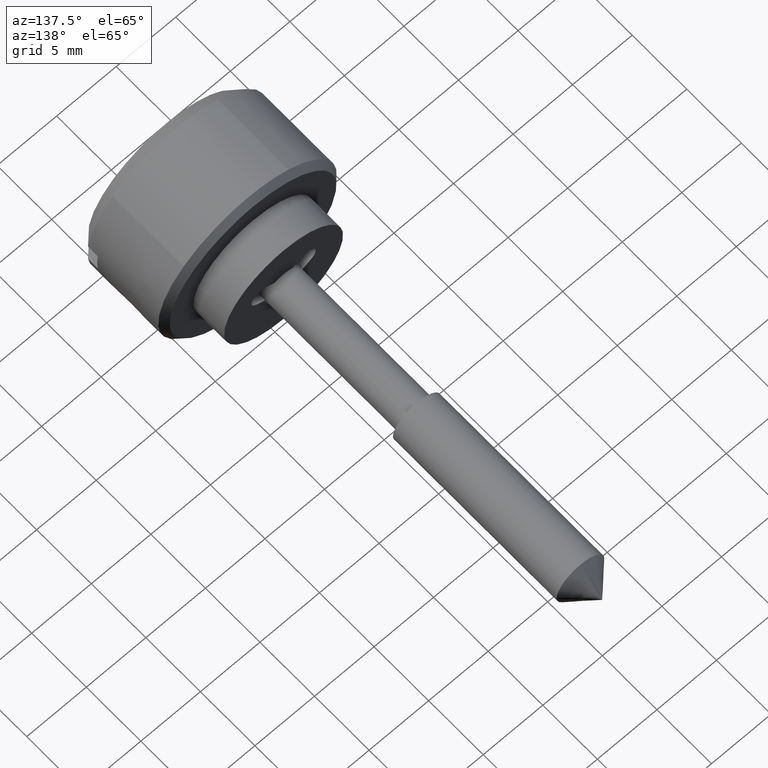
[diagram: clean part render]
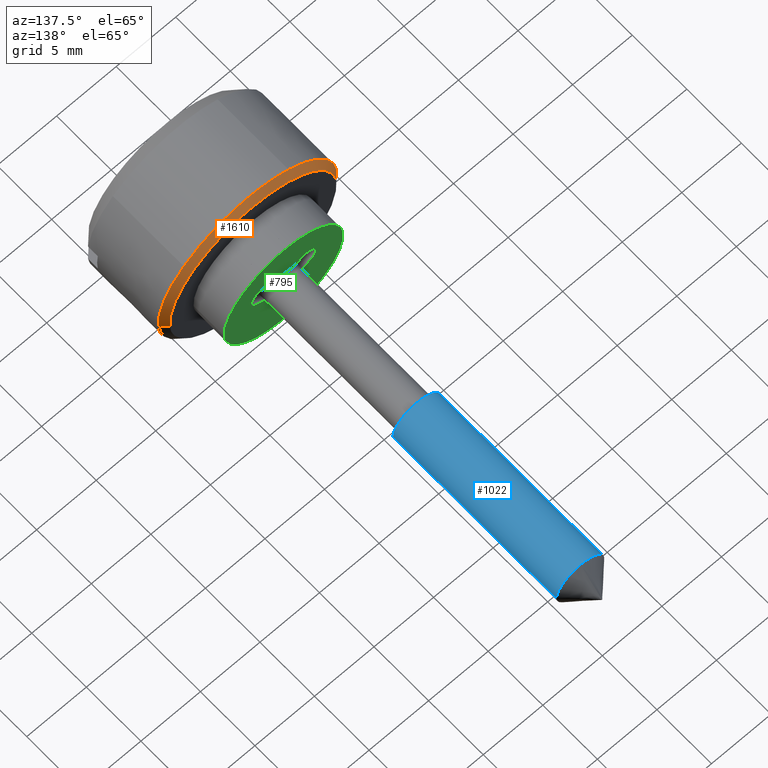
[diagram: same view with three faces highlighted in distinct colors, each labeled with its STEP entity id]
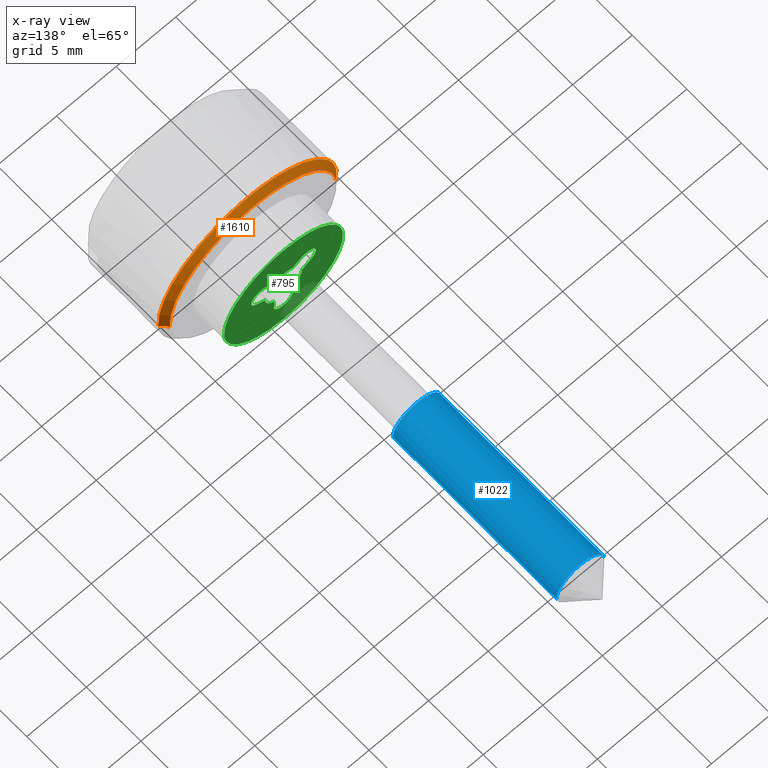
[diagram: x-ray of the same camera — body ghosted, the three highlighted faces saturated]
A machine part, auxiliary view with three faces highlighted in distinct colors.
The next image is the same camera in x-ray (body ghosted, the three faces saturated) — at least one of them is partly hidden behind the body in this view.
Their STEP definitions:

[orange] entity #1610 — the highlighted face is a freeform B-spline surface patch.
#1417=CARTESIAN_POINT('',(7.499899999988652,7.447571447728249,0.885256760015521));
#1418=VERTEX_POINT('',#1417);
#1436=CARTESIAN_POINT('',(7.999899999998985,6.951066684545736,0.826239642605311));
#1437=VERTEX_POINT('',#1436);
#1438=CARTESIAN_POINT('',(7.999899999998985,6.951066684545736,0.826239642605311));
#1439=CARTESIAN_POINT('',(7.499899999988652,7.447571447728249,0.885256760015521));
#1440=QUASI_UNIFORM_CURVE('',1,(#1438,#1439),.UNSPECIFIED.,.F.,.U.);
#1441=EDGE_CURVE('',#1437,#1418,#1440,.T.);
#1460=CARTESIAN_POINT('',(7.999899999991966,-6.986943588957392,-0.427339776804892));
#1461=VERTEX_POINT('',#1460);
#1475=CARTESIAN_POINT('',(7.499899999999781,-7.486010988164120,-0.457864046513102));
#1476=VERTEX_POINT('',#1475);
#1477=CARTESIAN_POINT('',(7.999899999991966,-6.986943588957392,-0.427339776804892));
#1478=CARTESIAN_POINT('',(7.499899999999781,-7.486010988164120,-0.457864046513102));
#1479=QUASI_UNIFORM_CURVE('',1,(#1477,#1478),.UNSPECIFIED.,.F.,.U.);
#1480=EDGE_CURVE('',#1461,#1476,#1479,.T.);
#1498=CARTESIAN_POINT('',(8.012400000000001,-6.974466903972791,-0.426576669999813));
#1499=CARTESIAN_POINT('',(8.012400000000001,-7.401043573972603,6.547890233972979));
#1500=CARTESIAN_POINT('',(8.012400000000001,-0.426576669999813,6.974466903972791));
#1501=CARTESIAN_POINT('',(8.012400000000001,6.159785142241011,7.377306049668533));
#1502=CARTESIAN_POINT('',(8.012400000000001,6.938654065466117,0.824764214664099));
#1503=CARTESIAN_POINT('',(7.487087500000000,-7.498799590268781,-0.458646230924218));
#1504=CARTESIAN_POINT('',(7.487087499999999,-7.957445821193000,7.040153359344564));
#1505=CARTESIAN_POINT('',(7.487087500000000,-0.458646230924218,7.498799590268781));
#1506=CARTESIAN_POINT('',(7.487087500000000,6.622870957272640,7.931923736139591));
#1507=CARTESIAN_POINT('',(7.487087500000000,7.460294382284035,0.886769073557228));
#1515=(BOUNDED_SURFACE()B_SPLINE_SURFACE(2,1,((#1498,#1503),(#1499,#1504),(#1500,#1505),(#1501,#1506),(#1502,#1507)),.UNSPECIFIED.,.F.,.F.,.U.)B_SPLINE_SURFACE_WITH_KNOTS((3,2,3),(2,2),(0.0,12.447635316264471,24.397365219878360),(0.0,1.0),.UNSPECIFIED.)GEOMETRIC_REPRESENTATION_ITEM()RATIONAL_B_SPLINE_SURFACE(((1.0,1.0),(0.707106781186548,0.707106781186548),(1.0,1.0),(0.718822509939086,0.718822509939086),(0.977505800795127,0.977505800795127)))REPRESENTATION_ITEM('')SURFACE());
#1516=CARTESIAN_POINT('',(7.499900000000000,3.440545476961388,6.664281418199603));
#1517=VERTEX_POINT('',#1516);
#1518=CARTESIAN_POINT('',(7.499900000000000,3.440545476961388,6.664281418199604));
#1519=CARTESIAN_POINT('',(7.499900000000002,6.977708690052852,4.838162420869137));
#1520=CARTESIAN_POINT('',(7.499899999988652,7.447571447728250,0.885256760015521));
#1528=(BOUNDED_CURVE()B_SPLINE_CURVE(2,(#1518,#1519,#1520),.UNSPECIFIED.,.F.,.U.)B_SPLINE_CURVE_WITH_KNOTS((3,3),(0.078028427142425,0.229562473511628),.UNSPECIFIED.)CURVE()GEOMETRIC_REPRESENTATION_ITEM()RATIONAL_B_SPLINE_CURVE((0.874232389058089,0.807520288065911,0.956026754180014))REPRESENTATION_ITEM(''));
#1529=EDGE_CURVE('',#1517,#1418,#1528,.T.);
#1530=ORIENTED_EDGE('',*,*,#1529,.F.);
#1531=CARTESIAN_POINT('',(7.499900000000000,0.0,7.500000000000000));
#1532=VERTEX_POINT('',#1531);
#1533=CARTESIAN_POINT('',(7.499900000000000,0.0,7.500000000000000));
#1534=CARTESIAN_POINT('',(7.499900000000001,1.821771986097596,7.500000000000001));
#1535=CARTESIAN_POINT('',(7.499900000000000,3.440545476961389,6.664281418199603));
#1543=(BOUNDED_CURVE()B_SPLINE_CURVE(2,(#1533,#1534,#1535),.UNSPECIFIED.,.F.,.U.)B_SPLINE_CURVE_WITH_KNOTS((3,3),(0.0,0.078028427142425),.UNSPECIFIED.)CURVE()GEOMETRIC_REPRESENTATION_ITEM()RATIONAL_B_SPLINE_CURVE((1.0,0.908584011261217,0.874232389058089))REPRESENTATION_ITEM(''));
#1544=EDGE_CURVE('',#1532,#1517,#1543,.T.);
#1545=ORIENTED_EDGE('',*,*,#1544,.F.);
#1546=CARTESIAN_POINT('',(7.499900000000023,-5.359268461754884,5.246736276471250));
#1547=VERTEX_POINT('',#1546);
#1548=CARTESIAN_POINT('',(7.499900000000023,-5.359268461754884,5.246736276471249));
#1549=CARTESIAN_POINT('',(7.499900000000000,-3.153318145594727,7.500000000000000));
#1550=CARTESIAN_POINT('',(7.499900000000000,0.0,7.500000000000000));
#1558=(BOUNDED_CURVE()B_SPLINE_CURVE(2,(#1548,#1549,#1550),.UNSPECIFIED.,.F.,.U.)B_SPLINE_CURVE_WITH_KNOTS((3,3),(0.873399080895589,1.0),.UNSPECIFIED.)CURVE()GEOMETRIC_REPRESENTATION_ITEM()RATIONAL_B_SPLINE_CURVE((0.853577411979700,0.851677797195070,1.0))REPRESENTATION_ITEM(''));
#1559=EDGE_CURVE('',#1547,#1532,#1558,.T.);
#1560=ORIENTED_EDGE('',*,*,#1559,.F.);
#1561=CARTESIAN_POINT('',(7.499899999999781,-7.486010988164120,-0.457864046513102));
#1562=CARTESIAN_POINT('',(7.499900000000000,-7.500000000000000,-0.229145724741083));
#1563=CARTESIAN_POINT('',(7.499900000000000,-7.500000000000000,0.0));
#1564=CARTESIAN_POINT('',(7.499900000000000,-7.499999999999999,3.060090148675428));
#1565=CARTESIAN_POINT('',(7.499900000000023,-5.359268461754884,5.246736276471249));
#1573=(BOUNDED_CURVE()B_SPLINE_CURVE(2,(#1561,#1562,#1563,#1564,#1565),.UNSPECIFIED.,.F.,.U.)B_SPLINE_CURVE_WITH_KNOTS((3,2,3),(0.739332962241892,0.750000000000000,0.873399080895589),.UNSPECIFIED.)CURVE()GEOMETRIC_REPRESENTATION_ITEM()RATIONAL_B_SPLINE_CURVE((0.976072041673038,0.987502787903292,1.0,0.855428983991477,0.853577411979700))REPRESENTATION_ITEM(''));
#1574=EDGE_CURVE('',#1476,#1547,#1573,.T.);
#1575=ORIENTED_EDGE('',*,*,#1574,.F.);
#1576=ORIENTED_EDGE('',*,*,#1480,.F.);
#1577=CARTESIAN_POINT('',(7.999900000000001,0.0,7.0));
#1578=VERTEX_POINT('',#1577);
#1579=CARTESIAN_POINT('',(7.999899999991966,-6.986943588957392,-0.427339776804892));
#1580=CARTESIAN_POINT('',(7.999900000000003,-7.0,-0.213869343150694));
#1581=CARTESIAN_POINT('',(7.999900000000001,-7.0,0.0));
#1582=CARTESIAN_POINT('',(7.999900000000002,-6.999999999999999,6.999999999999999));
#1583=CARTESIAN_POINT('',(7.999900000000001,0.0,7.0));
#1591=(BOUNDED_CURVE()B_SPLINE_CURVE(2,(#1579,#1580,#1581,#1582,#1583),.UNSPECIFIED.,.F.,.U.)B_SPLINE_CURVE_WITH_KNOTS((3,2,3),(0.739332962238985,0.750000000000000,1.0),.UNSPECIFIED.)CURVE()GEOMETRIC_REPRESENTATION_ITEM()RATIONAL_B_SPLINE_CURVE((0.976072041666808,0.987502787899887,1.0,0.707106781186547,1.0))REPRESENTATION_ITEM(''));
#1592=EDGE_CURVE('',#1461,#1578,#1591,.T.);
#1593=ORIENTED_EDGE('',*,*,#1592,.T.);
#1594=CARTESIAN_POINT('',(7.999900000000001,0.0,7.0));
#1595=CARTESIAN_POINT('',(7.999900000000001,6.217221681645379,6.999999999999999));
#1596=CARTESIAN_POINT('',(7.999899999998986,6.951066684545736,0.826239642605311));
#1604=(BOUNDED_CURVE()B_SPLINE_CURVE(2,(#1594,#1595,#1596),.UNSPECIFIED.,.F.,.U.)B_SPLINE_CURVE_WITH_KNOTS((3,3),(0.0,0.229562473515261),.UNSPECIFIED.)CURVE()GEOMETRIC_REPRESENTATION_ITEM()RATIONAL_B_SPLINE_CURVE((1.0,0.731050832853349,0.956026754187135))REPRESENTATION_ITEM(''));
#1605=EDGE_CURVE('',#1578,#1437,#1604,.T.);
#1606=ORIENTED_EDGE('',*,*,#1605,.T.);
#1607=ORIENTED_EDGE('',*,*,#1441,.T.);
#1608=EDGE_LOOP('',(#1530,#1545,#1560,#1575,#1576,#1593,#1606,#1607));
#1609=FACE_OUTER_BOUND('',#1608,.T.);
#1610=ADVANCED_FACE('',(#1609),#1515,.T.);

[blue] entity #1022 — the highlighted face is a freeform B-spline surface patch.
#859=CARTESIAN_POINT('',(37.999899999999997,1.986019052726245,0.236068469322671));
#860=VERTEX_POINT('',#859);
#878=CARTESIAN_POINT('',(37.999899999999997,-1.996269596837640,-0.122097079169345));
#879=VERTEX_POINT('',#878);
#893=CARTESIAN_POINT('',(22.999900000000000,-1.996269596837640,-0.122097079169345));
#894=VERTEX_POINT('',#893);
#895=CARTESIAN_POINT('',(37.999899999999997,-1.996269596837640,-0.122097079169345));
#896=CARTESIAN_POINT('',(22.999900000000000,-1.996269596837640,-0.122097079169345));
#897=QUASI_UNIFORM_CURVE('',1,(#895,#896),.UNSPECIFIED.,.F.,.U.);
#898=EDGE_CURVE('',#879,#894,#897,.T.);
#915=CARTESIAN_POINT('',(22.999900000000000,1.986019052726245,0.236068469322671));
#916=VERTEX_POINT('',#915);
#932=CARTESIAN_POINT('',(37.999899999999997,1.986019052726245,0.236068469322671));
#933=CARTESIAN_POINT('',(22.999900000000000,1.986019052726245,0.236068469322671));
#934=QUASI_UNIFORM_CURVE('',1,(#932,#933),.UNSPECIFIED.,.F.,.U.);
#935=EDGE_CURVE('',#860,#916,#934,.T.);
#940=CARTESIAN_POINT('',(38.374900000000011,-1.996269596843733,-0.122097079069714));
#941=CARTESIAN_POINT('',(38.374900000000011,-2.118366675913447,1.874172517774020));
#942=CARTESIAN_POINT('',(38.374900000000011,-0.122097079069714,1.996269596843733));
#943=CARTESIAN_POINT('',(38.374900000000018,1.763086981679002,2.111572393465055));
#944=CARTESIAN_POINT('',(38.374900000000011,1.986019052727332,0.236068469313517));
#945=CARTESIAN_POINT('',(22.615525000000002,-1.996269596843733,-0.122097079069714));
#946=CARTESIAN_POINT('',(22.615524999999991,-2.118366675913447,1.874172517774020));
#947=CARTESIAN_POINT('',(22.615525000000002,-0.122097079069714,1.996269596843733));
#948=CARTESIAN_POINT('',(22.615524999999998,1.763086981679002,2.111572393465055));
#949=CARTESIAN_POINT('',(22.615524999999995,1.986019052727332,0.236068469313517));
#957=(BOUNDED_SURFACE()B_SPLINE_SURFACE(2,1,((#940,#945),(#941,#946),(#942,#947),(#943,#948),(#944,#949)),.UNSPECIFIED.,.F.,.F.,.U.)B_SPLINE_SURFACE_WITH_KNOTS((3,2,3),(2,2),(0.0,3.313708498984759,6.494868658010128),(0.0,15.759375000000020),.UNSPECIFIED.)GEOMETRIC_REPRESENTATION_ITEM()RATIONAL_B_SPLINE_SURFACE(((1.0,1.0),(0.707106781186548,0.707106781186548),(1.0,1.0),(0.718822509939086,0.718822509939086),(0.977505800795127,0.977505800795127)))REPRESENTATION_ITEM('')SURFACE());
#958=CARTESIAN_POINT('',(37.999899999999997,0.0,2.0));
#959=VERTEX_POINT('',#958);
#960=CARTESIAN_POINT('',(37.999899999999997,0.0,2.0));
#961=CARTESIAN_POINT('',(37.999900000000011,1.776349051886243,2.0));
#962=CARTESIAN_POINT('',(37.999900000000004,1.986019052726245,0.236068469322671));
#970=(BOUNDED_CURVE()B_SPLINE_CURVE(2,(#960,#961,#962),.UNSPECIFIED.,.F.,.U.)B_SPLINE_CURVE_WITH_KNOTS((3,3),(0.0,0.459124947028172),.UNSPECIFIED.)CURVE()GEOMETRIC_REPRESENTATION_ITEM()RATIONAL_B_SPLINE_CURVE((1.0,0.731050832854726,0.956026754184832))REPRESENTATION_ITEM(''));
#971=EDGE_CURVE('',#959,#860,#970,.T.);
#972=ORIENTED_EDGE('',*,*,#971,.T.);
#973=ORIENTED_EDGE('',*,*,#935,.T.);
#974=CARTESIAN_POINT('',(22.999900000000000,0.0,2.0));
#975=VERTEX_POINT('',#974);
#976=CARTESIAN_POINT('',(22.999900000000000,0.0,2.0));
#977=CARTESIAN_POINT('',(22.999900000000000,1.776349051886243,2.0));
#978=CARTESIAN_POINT('',(22.999900000000000,1.986019052726245,0.236068469322671));
#986=(BOUNDED_CURVE()B_SPLINE_CURVE(2,(#976,#977,#978),.UNSPECIFIED.,.F.,.U.)B_SPLINE_CURVE_WITH_KNOTS((3,3),(0.0,0.229562473514086),.UNSPECIFIED.)CURVE()GEOMETRIC_REPRESENTATION_ITEM()RATIONAL_B_SPLINE_CURVE((1.0,0.731050832854726,0.956026754184832))REPRESENTATION_ITEM(''));
#987=EDGE_CURVE('',#975,#916,#986,.T.);
#988=ORIENTED_EDGE('',*,*,#987,.F.);
#989=CARTESIAN_POINT('',(22.999900000000004,-1.996269596837640,-0.122097079169345));
#990=CARTESIAN_POINT('',(22.999900000000004,-2.000000000000000,-0.061105526697089));
#991=CARTESIAN_POINT('',(22.999900000000000,-2.0,0.0));
#992=CARTESIAN_POINT('',(22.999900000000007,-2.000000000000000,2.000000000000000));
#993=CARTESIAN_POINT('',(22.999900000000000,0.0,2.0));
#1001=(BOUNDED_CURVE()B_SPLINE_CURVE(2,(#989,#990,#991,#992,#993),.UNSPECIFIED.,.F.,.U.)B_SPLINE_CURVE_WITH_KNOTS((3,2,3),(0.739332962224745,0.750000000000000,1.0),.UNSPECIFIED.)CURVE()GEOMETRIC_REPRESENTATION_ITEM()RATIONAL_B_SPLINE_CURVE((0.976072041636289,0.987502787883204,1.0,0.707106781186548,1.0))REPRESENTATION_ITEM(''));
#1002=EDGE_CURVE('',#894,#975,#1001,.T.);
#1003=ORIENTED_EDGE('',*,*,#1002,.F.);
#1004=ORIENTED_EDGE('',*,*,#898,.F.);
#1005=CARTESIAN_POINT('',(37.999900000000004,-1.996269596837640,-0.122097079169345));
#1006=CARTESIAN_POINT('',(37.999900000000004,-2.000000000000000,-0.061105526697089));
#1007=CARTESIAN_POINT('',(37.999899999999997,-2.0,0.0));
#1008=CARTESIAN_POINT('',(37.999900000000004,-2.000000000000000,2.000000000000000));
#1009=CARTESIAN_POINT('',(37.999899999999997,0.0,2.0));
#1017=(BOUNDED_CURVE()B_SPLINE_CURVE(2,(#1005,#1006,#1007,#1008,#1009),.UNSPECIFIED.,.F.,.U.)B_SPLINE_CURVE_WITH_KNOTS((3,2,3),(0.478665924449490,0.500000000000000,1.0),.UNSPECIFIED.)CURVE()GEOMETRIC_REPRESENTATION_ITEM()RATIONAL_B_SPLINE_CURVE((0.976072041636289,0.987502787883204,1.0,0.707106781186548,1.0))REPRESENTATION_ITEM(''));
#1018=EDGE_CURVE('',#879,#959,#1017,.T.);
#1019=ORIENTED_EDGE('',*,*,#1018,.T.);
#1020=EDGE_LOOP('',(#972,#973,#988,#1003,#1004,#1019));
#1021=FACE_OUTER_BOUND('',#1020,.T.);
#1022=ADVANCED_FACE('',(#1021),#957,.T.);

[green] entity #795 — the highlighted face is a freeform B-spline surface patch.
#85=CARTESIAN_POINT('',(-4.965048111126531,0.800000000000023,0.590167140886682));
#86=VERTEX_POINT('',#85);
#92=CARTESIAN_POINT('',(0.0,0.800000000000023,-5.0));
#93=VERTEX_POINT('',#92);
#94=CARTESIAN_POINT('',(-4.965048111126531,0.800000000000023,0.590167140886682));
#95=CARTESIAN_POINT('',(-5.0,0.800000000000023,0.296118560746247));
#96=CARTESIAN_POINT('',(-5.0,0.800000000000023,0.0));
#97=CARTESIAN_POINT('',(-5.000000000000001,0.800000000000023,-5.000000000000001));
#98=CARTESIAN_POINT('',(0.0,0.800000000000023,-5.0));
#106=(BOUNDED_CURVE()B_SPLINE_CURVE(2,(#94,#95,#96,#97,#98),.UNSPECIFIED.,.F.,.U.)B_SPLINE_CURVE_WITH_KNOTS((3,2,3),(0.229562610772786,0.250000000000000,0.500000000000000),.UNSPECIFIED.)CURVE()GEOMETRIC_REPRESENTATION_ITEM()RATIONAL_B_SPLINE_CURVE((0.956027023217678,0.976056109140392,1.0,0.707106781186548,1.0))REPRESENTATION_ITEM(''));
#107=EDGE_CURVE('',#86,#93,#106,.T.);
#109=CARTESIAN_POINT('',(4.990673992107416,0.800000000000023,-0.305242697705651));
#110=VERTEX_POINT('',#109);
#111=CARTESIAN_POINT('',(0.0,0.800000000000023,-5.0));
#112=CARTESIAN_POINT('',(4.703530334469256,0.800000000000023,-5.0));
#113=CARTESIAN_POINT('',(4.990673992107416,0.800000000000023,-0.305242697705651));
#121=(BOUNDED_CURVE()B_SPLINE_CURVE(2,(#111,#112,#113),.UNSPECIFIED.,.F.,.U.)B_SPLINE_CURVE_WITH_KNOTS((3,3),(0.500000000000000,0.739332962239800),.UNSPECIFIED.)CURVE()GEOMETRIC_REPRESENTATION_ITEM()RATIONAL_B_SPLINE_CURVE((1.0,0.719603993285706,0.976072041668554))REPRESENTATION_ITEM(''));
#122=EDGE_CURVE('',#93,#110,#121,.T.);
#196=CARTESIAN_POINT('',(0.0,0.800000000000023,5.0));
#197=VERTEX_POINT('',#196);
#198=CARTESIAN_POINT('',(4.990673992107416,0.800000000000023,-0.305242697705651));
#199=CARTESIAN_POINT('',(5.0,0.800000000000023,-0.152763816524399));
#200=CARTESIAN_POINT('',(5.0,0.800000000000023,0.0));
#201=CARTESIAN_POINT('',(5.000000000000001,0.800000000000023,5.000000000000001));
#202=CARTESIAN_POINT('',(0.0,0.800000000000023,5.0));
#210=(BOUNDED_CURVE()B_SPLINE_CURVE(2,(#198,#199,#200,#201,#202),.UNSPECIFIED.,.F.,.U.)B_SPLINE_CURVE_WITH_KNOTS((3,2,3),(0.739332962239799,0.750000000000000,1.0),.UNSPECIFIED.)CURVE()GEOMETRIC_REPRESENTATION_ITEM()RATIONAL_B_SPLINE_CURVE((0.976072041668553,0.987502787900841,1.0,0.707106781186548,1.0))REPRESENTATION_ITEM(''));
#211=EDGE_CURVE('',#110,#197,#210,.T.);
#213=CARTESIAN_POINT('',(0.0,0.800000000000023,5.0));
#214=CARTESIAN_POINT('',(-4.440876261832547,0.800000000000023,5.0));
#215=CARTESIAN_POINT('',(-4.965048111126531,0.800000000000023,0.590167140886682));
#223=(BOUNDED_CURVE()B_SPLINE_CURVE(2,(#213,#214,#215),.UNSPECIFIED.,.F.,.U.)B_SPLINE_CURVE_WITH_KNOTS((3,3),(0.0,0.229562610772786),.UNSPECIFIED.)CURVE()GEOMETRIC_REPRESENTATION_ITEM()RATIONAL_B_SPLINE_CURVE((1.0,0.731050672046156,0.956027023217678))REPRESENTATION_ITEM(''));
#224=EDGE_CURVE('',#197,#86,#223,.T.);
#267=CARTESIAN_POINT('',(1.505200000000000,0.800000000000023,1.792900000000000));
#268=VERTEX_POINT('',#267);
#274=CARTESIAN_POINT('',(2.309794983558780,0.800000000000023,0.409852987198331));
#275=VERTEX_POINT('',#274);
#276=CARTESIAN_POINT('',(2.309794983558779,0.800000000000023,0.409852987198332));
#277=CARTESIAN_POINT('',(2.997732561522572,0.800000000000023,0.813095514915834));
#278=CARTESIAN_POINT('',(2.596752573461200,0.800000000000023,1.502354317187515));
#279=CARTESIAN_POINT('',(2.195772585399829,0.800000000000023,2.191613119459197));
#280=CARTESIAN_POINT('',(1.505200000000001,0.800000000000023,1.792899999999999));
#288=(BOUNDED_CURVE()B_SPLINE_CURVE(2,(#276,#277,#278,#279,#280),.UNSPECIFIED.,.F.,.U.)B_SPLINE_CURVE_WITH_KNOTS((3,2,3),(0.0,0.500000000000000,1.0),.UNSPECIFIED.)CURVE()GEOMETRIC_REPRESENTATION_ITEM()RATIONAL_B_SPLINE_CURVE((1.0,0.708267502221114,1.0,0.708267502221114,1.0))REPRESENTATION_ITEM(''));
#289=EDGE_CURVE('',#275,#268,#288,.T.);
#311=CARTESIAN_POINT('',(0.749639666225095,0.800000000000023,1.356665165330756));
#312=VERTEX_POINT('',#311);
#318=CARTESIAN_POINT('',(0.749639666225095,0.800000000000023,1.356665165330756));
#319=CARTESIAN_POINT('',(1.505200000000000,0.800000000000023,1.792900000000000));
#320=QUASI_UNIFORM_CURVE('',1,(#318,#319),.UNSPECIFIED.,.F.,.U.);
#321=EDGE_CURVE('',#312,#268,#320,.T.);
#356=CARTESIAN_POINT('',(-0.749690762769801,0.800000000000023,1.356636930139244));
#357=VERTEX_POINT('',#356);
#363=CARTESIAN_POINT('',(0.749639666225096,0.800000000000023,1.356665165330756));
#364=CARTESIAN_POINT('',(-0.000033349446036,0.800000000000023,1.770904908199554));
#365=CARTESIAN_POINT('',(-0.749690762769801,0.800000000000023,1.356636930139245));
#373=(BOUNDED_CURVE()B_SPLINE_CURVE(2,(#363,#364,#365),.UNSPECIFIED.,.F.,.U.)CURVE()GEOMETRIC_REPRESENTATION_ITEM()QUASI_UNIFORM_CURVE()RATIONAL_B_SPLINE_CURVE((1.0,0.875258740629394,1.0))REPRESENTATION_ITEM(''));
#374=EDGE_CURVE('',#312,#357,#373,.T.);
#392=CARTESIAN_POINT('',(-1.505300000000000,0.800000000000023,1.792900000000000));
#393=VERTEX_POINT('',#392);
#399=CARTESIAN_POINT('',(-1.505300000000000,0.800000000000023,1.792900000000000));
#400=CARTESIAN_POINT('',(-0.749690762769801,0.800000000000023,1.356636930139244));
#401=QUASI_UNIFORM_CURVE('',1,(#399,#400),.UNSPECIFIED.,.F.,.U.);
#402=EDGE_CURVE('',#393,#357,#401,.T.);
#445=CARTESIAN_POINT('',(-2.300703745775685,0.800000000000023,0.404546279162633));
#446=VERTEX_POINT('',#445);
#452=CARTESIAN_POINT('',(-1.505300000000000,0.800000000000023,1.792900000000000));
#453=CARTESIAN_POINT('',(-1.906346013160948,0.800000000000023,2.024450325533841));
#454=CARTESIAN_POINT('',(-2.306879795074811,0.800000000000023,1.792015071166313));
#455=CARTESIAN_POINT('',(-2.707413576988674,0.800000000000023,1.559579816798786));
#456=CARTESIAN_POINT('',(-2.705352236400295,0.800000000000023,1.096493206322843));
#457=CARTESIAN_POINT('',(-2.703290895811918,0.800000000000023,0.633406595846900));
#458=CARTESIAN_POINT('',(-2.300703745775686,0.800000000000023,0.404546279162634));
#466=(BOUNDED_CURVE()B_SPLINE_CURVE(2,(#452,#453,#454,#455,#456,#457,#458),.UNSPECIFIED.,.F.,.U.)B_SPLINE_CURVE_WITH_KNOTS((3,2,2,3),(0.0,0.333333333333333,0.666666666666667,1.0),.UNSPECIFIED.)CURVE()GEOMETRIC_REPRESENTATION_ITEM()RATIONAL_B_SPLINE_CURVE((1.0,0.865466982010348,1.0,0.865466982010348,1.0,0.865466982010348,1.0))REPRESENTATION_ITEM(''));
#467=EDGE_CURVE('',#393,#446,#466,.T.);
#485=CARTESIAN_POINT('',(-1.549727906457970,0.800000000000023,-0.029041624358724));
#486=VERTEX_POINT('',#485);
#492=CARTESIAN_POINT('',(-1.549727906457970,0.800000000000023,-0.029041624358724));
#493=CARTESIAN_POINT('',(-2.300703745775685,0.800000000000023,0.404546279162633));
#494=QUASI_UNIFORM_CURVE('',1,(#492,#493),.UNSPECIFIED.,.F.,.U.);
#495=EDGE_CURVE('',#486,#446,#494,.T.);
#530=CARTESIAN_POINT('',(-0.799999999999990,0.800000000000023,-1.327591804735182));
#531=VERTEX_POINT('',#530);
#537=CARTESIAN_POINT('',(-1.549727906457971,0.800000000000023,-0.029041624358724));
#538=CARTESIAN_POINT('',(-1.533678385811006,0.800000000000023,-0.885480979287683));
#539=CARTESIAN_POINT('',(-0.799999999999990,0.800000000000023,-1.327591804735181));
#547=(BOUNDED_CURVE()B_SPLINE_CURVE(2,(#537,#538,#539),.UNSPECIFIED.,.F.,.U.)CURVE()GEOMETRIC_REPRESENTATION_ITEM()QUASI_UNIFORM_CURVE()RATIONAL_B_SPLINE_CURVE((1.0,0.875238959213732,1.0))REPRESENTATION_ITEM(''));
#548=EDGE_CURVE('',#486,#531,#547,.T.);
#566=CARTESIAN_POINT('',(-0.800000000000000,0.800000000000023,-2.200000000000000));
#567=VERTEX_POINT('',#566);
#573=CARTESIAN_POINT('',(-0.800000000000000,0.800000000000023,-2.200000000000000));
#574=CARTESIAN_POINT('',(-0.799999999999990,0.800000000000023,-1.327591804735182));
#575=QUASI_UNIFORM_CURVE('',1,(#573,#574),.UNSPECIFIED.,.F.,.U.);
#576=EDGE_CURVE('',#567,#531,#575,.T.);
#617=CARTESIAN_POINT('',(0.800000000000000,0.800000000000023,-2.200000000000000));
#618=VERTEX_POINT('',#617);
#624=CARTESIAN_POINT('',(-0.800000000000000,0.800000000000023,-2.200000000000000));
#625=CARTESIAN_POINT('',(-0.800000000000000,0.800000000000023,-3.0));
#626=CARTESIAN_POINT('',(0.0,0.800000000000023,-3.0));
#627=CARTESIAN_POINT('',(0.800000000000000,0.800000000000023,-3.0));
#628=CARTESIAN_POINT('',(0.800000000000000,0.800000000000023,-2.200000000000000));
#636=(BOUNDED_CURVE()B_SPLINE_CURVE(2,(#624,#625,#626,#627,#628),.UNSPECIFIED.,.F.,.U.)B_SPLINE_CURVE_WITH_KNOTS((3,2,3),(0.0,0.500000000000000,1.0),.UNSPECIFIED.)CURVE()GEOMETRIC_REPRESENTATION_ITEM()RATIONAL_B_SPLINE_CURVE((1.0,0.707106781186548,1.0,0.707106781186548,1.0))REPRESENTATION_ITEM(''));
#637=EDGE_CURVE('',#567,#618,#636,.T.);
#655=CARTESIAN_POINT('',(0.800000000000000,0.800000000000023,-1.327591804735178));
#656=VERTEX_POINT('',#655);
#662=CARTESIAN_POINT('',(0.800000000000000,0.800000000000023,-1.327591804735178));
#663=CARTESIAN_POINT('',(0.800000000000000,0.800000000000023,-2.200000000000000));
#664=QUASI_UNIFORM_CURVE('',1,(#662,#663),.UNSPECIFIED.,.F.,.U.);
#665=EDGE_CURVE('',#656,#618,#664,.T.);
#700=CARTESIAN_POINT('',(1.549728999154675,0.800000000000023,-0.028983256874563));
#701=VERTEX_POINT('',#700);
#707=CARTESIAN_POINT('',(0.799999999999998,0.800000000000023,-1.327591804735176));
#708=CARTESIAN_POINT('',(1.533711022130222,0.800000000000023,-0.885461312809412));
#709=CARTESIAN_POINT('',(1.549728999154673,0.800000000000023,-0.028983256874563));
#717=(BOUNDED_CURVE()B_SPLINE_CURVE(2,(#707,#708,#709),.UNSPECIFIED.,.F.,.U.)CURVE()GEOMETRIC_REPRESENTATION_ITEM()QUASI_UNIFORM_CURVE()RATIONAL_B_SPLINE_CURVE((1.0,0.875229850426156,1.0))REPRESENTATION_ITEM(''));
#718=EDGE_CURVE('',#656,#701,#717,.T.);
#735=CARTESIAN_POINT('',(2.309794983558780,0.800000000000023,0.409852987198331));
#736=CARTESIAN_POINT('',(1.549728999154675,0.800000000000023,-0.028983256874563));
#737=QUASI_UNIFORM_CURVE('',1,(#735,#736),.UNSPECIFIED.,.F.,.U.);
#738=EDGE_CURVE('',#275,#701,#737,.T.);
#770=CARTESIAN_POINT('',(-5.499409322677540,0.800000000000000,5.499499980618060));
#771=CARTESIAN_POINT('',(5.499378298459934,0.800000000000000,5.499499980618060));
#772=CARTESIAN_POINT('',(-5.499409322677540,0.800000000000000,-5.499500248838961));
#773=CARTESIAN_POINT('',(5.499378298459934,0.800000000000000,-5.499500248838961));
#774=B_SPLINE_SURFACE_WITH_KNOTS('',1,1,((#770,#772),(#771,#773)),.UNSPECIFIED.,.F.,.F.,.U.,(2,2),(2,2),(0.0,10.998787621137470),(0.0,10.999000229457019),.UNSPECIFIED.);
#775=ORIENTED_EDGE('',*,*,#211,.F.);
#776=ORIENTED_EDGE('',*,*,#122,.F.);
#777=ORIENTED_EDGE('',*,*,#107,.F.);
#778=ORIENTED_EDGE('',*,*,#224,.F.);
#779=EDGE_LOOP('',(#775,#776,#777,#778));
#780=FACE_OUTER_BOUND('',#779,.T.);
#781=ORIENTED_EDGE('',*,*,#738,.F.);
#782=ORIENTED_EDGE('',*,*,#289,.T.);
#783=ORIENTED_EDGE('',*,*,#321,.F.);
#784=ORIENTED_EDGE('',*,*,#374,.T.);
#785=ORIENTED_EDGE('',*,*,#402,.F.);
#786=ORIENTED_EDGE('',*,*,#467,.T.);
#787=ORIENTED_EDGE('',*,*,#495,.F.);
#788=ORIENTED_EDGE('',*,*,#548,.T.);
#789=ORIENTED_EDGE('',*,*,#576,.F.);
#790=ORIENTED_EDGE('',*,*,#637,.T.);
#791=ORIENTED_EDGE('',*,*,#665,.F.);
#792=ORIENTED_EDGE('',*,*,#718,.T.);
#793=EDGE_LOOP('',(#781,#782,#783,#784,#785,#786,#787,#788,#789,#790,#791,#792));
#794=FACE_BOUND('',#793,.T.);
#795=ADVANCED_FACE('',(#780,#794),#774,.T.);